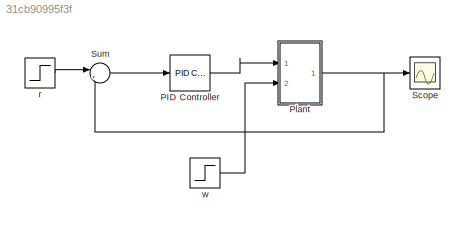
MODEL slx_31cb90995f3f
KIND model
CONFIG AbsTol = 1e-6
CONFIG EnableMultiTasking = off
CONFIG FixedStep = 0.01
CONFIG MaxStep = auto
CONFIG MinStep = auto
CONFIG RelTol = 1e-3
CONFIG SampleTimeConstraint = Unconstrained
CONFIG Solver = FixedStepAuto
CONFIG SolverName = FixedStepAuto
CONFIG StartTime = 0.0
CONFIG StopTime = 50
BLOCK [Reference] PID Controller  REF=simulink/Continuous/PID Controller
  Ports = [1, 1]
  SourceBlock = simulink/Continuous/PID Controller
  SourceProductBaseCode = SL
  SourceProductName = Simulink
  SourceType = PID 1dof
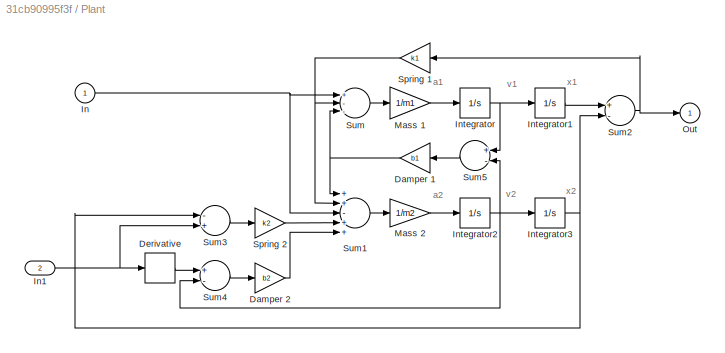
BLOCK [SubSystem] Plant
  Ports = [2, 1]
  RequestExecContextInheritance = off
  Variant = off
BLOCK [Gain] Plant/Damper 1
  Gain = b1
BLOCK [Gain] Plant/Damper 2
  Gain = b2
BLOCK [Derivative] Plant/Derivative
BLOCK [Inport] Plant/In
  IconDisplay = Port number
BLOCK [Inport] Plant/In1
  IconDisplay = Port number
  Port = 2
BLOCK [Integrator] Plant/Integrator
  Ports = [1, 1]
BLOCK [Integrator] Plant/Integrator1
  Ports = [1, 1]
BLOCK [Integrator] Plant/Integrator2
  Ports = [1, 1]
BLOCK [Integrator] Plant/Integrator3
  Ports = [1, 1]
BLOCK [Gain] Plant/Mass 1
  Gain = 1/m1
BLOCK [Gain] Plant/Mass 2
  Gain = 1/m2
BLOCK [Outport] Plant/Out
  IconDisplay = Port number
  InitialOutput = 0
BLOCK [Gain] Plant/Spring 1
  Gain = k1
BLOCK [Gain] Plant/Spring 2
  Gain = k2
BLOCK [Sum] Plant/Sum
  Inputs = +--
  Ports = [3, 1]
BLOCK [Sum] Plant/Sum1
  Inputs = ++-++
  Ports = [5, 1]
BLOCK [Sum] Plant/Sum2
  Inputs = +-
  Ports = [2, 1]
BLOCK [Sum] Plant/Sum3
  Inputs = -+
  Ports = [2, 1]
BLOCK [Sum] Plant/Sum4
  Inputs = +-
  Ports = [2, 1]
BLOCK [Sum] Plant/Sum5
  Inputs = +-
  Ports = [2, 1]
BLOCK [Scope] Scope
  NumInputPorts = 1
  Ports = [1]
  ScopeSpecificationString = Simulink.scopes.TimeScopeBlockCfg('CurrentConfiguration', extmgr.ConfigurationSet(extmgr.Configuration('Core','General UI',true),extmgr.Configuration('Core','Source UI',true),extmgr.Configuration('Sources','WiredSimulink',true),extmgr.Configuration('Visuals','Time Domain',true,'SerializedDisplays',{struct('MinYLimReal','-0.10194','MaxYLimReal','0.11247','YLabelReal','','MinYLimMag','0.00000','MaxY...<+1353ch>
BLOCK [Sum] Sum
  IconShape = round
  InputSameDT = off
  Inputs = |+-
  OutDataTypeStr = Inherit: Inherit via internal rule
  Ports = [2, 1]
  SaturateOnIntegerOverflow = off
BLOCK [Step] r
  After = 0
  SampleTime = 0
  Time = 0
BLOCK [Step] w
  After = -.1
  SampleTime = 0
  Time = 0
ANNOTATION Plant: a1
ANNOTATION Plant: a2
ANNOTATION Plant: v1
ANNOTATION Plant: v2
ANNOTATION Plant: x1
ANNOTATION Plant: x2
LINE PID Controller:1 -> Plant:1
NET Plant/Damper 1:1 -> Plant/Sum1:1, Plant/Sum:3
LINE Plant/Damper 2:1 -> Plant/Sum1:5
LINE Plant/Derivative:1 -> Plant/Sum4:1
NET Plant/In1:1 -> Plant/Derivative:1, Plant/Sum3:2
NET Plant/In:1 -> Plant/Sum1:3, Plant/Sum:1
LINE Plant/Integrator1:1 -> Plant/Sum2:1
NET Plant/Integrator2:1 -> Plant/Integrator3:1, Plant/Sum4:2, Plant/Sum5:2
NET Plant/Integrator3:1 -> Plant/Sum2:2, Plant/Sum3:1
NET Plant/Integrator:1 -> Plant/Integrator1:1, Plant/Sum5:1
LINE Plant/Mass 1:1 -> Plant/Integrator:1
LINE Plant/Mass 2:1 -> Plant/Integrator2:1
NET Plant/Spring 1:1 -> Plant/Sum1:2, Plant/Sum:2
LINE Plant/Spring 2:1 -> Plant/Sum1:4
LINE Plant/Sum1:1 -> Plant/Mass 2:1
NET Plant/Sum2:1 -> Plant/Out:1, Plant/Spring 1:1
LINE Plant/Sum3:1 -> Plant/Spring 2:1
LINE Plant/Sum4:1 -> Plant/Damper 2:1
LINE Plant/Sum5:1 -> Plant/Damper 1:1
LINE Plant/Sum:1 -> Plant/Mass 1:1
NET Plant:1 -> Scope:1, Sum:2
LINE Sum:1 -> PID Controller:1
LINE r:1 -> Sum:1
LINE w:1 -> Plant:2
note: NET lines group one-source signal fan-out (src -> all destinations, sorted); 1:1 wires keep LINE
